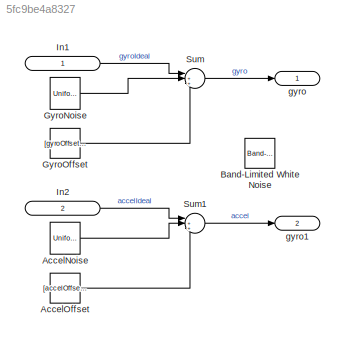
MODEL slx_5fc9be4a8327
KIND model
CONFIG AbsTol = auto
CONFIG FixedStep = auto
CONFIG MaxStep = auto
CONFIG MinStep = auto
CONFIG RelTol = 1e-3
CONFIG SampleTimeConstraint = Unconstrained
CONFIG Solver = ode45
CONFIG SolverMode = Auto
CONFIG SolverName = ode45
CONFIG StartTime = 0.0
CONFIG StopTime = 10.0
BLOCK [UniformRandomNumber] AccelNoise
  Maximum = [accelNoise accelNoise accelNoise]
  Minimum = [-accelNoise -accelNoise -accelNoise]
  SampleTime = dt
  Seed = [4 5 6]
BLOCK [Constant] AccelOffset
  Value = [accelOffset accelOffset accelOffset]
BLOCK [Reference] Band-Limited White Noise  REF=simulink/Sources/Band-Limited
White Noise
  Cov = [0.1]
  Ports = [0, 1]
  SourceBlock = simulink/Sources/Band-Limited\nWhite Noise
  SourceType = Band-Limited White Noise.
  Ts = 0.1
  VectorParams1D = on
  seed = [23341]
BLOCK [UniformRandomNumber] GyroNoise
  Maximum = [gyroNoise gyroNoise gyroNoise]
  Minimum = [-gyroNoise -gyroNoise -gyroNoise]
  SampleTime = dt
  Seed = [1 2 3]
BLOCK [Constant] GyroOffset
  Value = [gyroOffset gyroOffset gyroOffset]
BLOCK [Inport] In1
  IconDisplay = Signal name
  OutDataTypeStr = double
  OutMax = [gyroMax]
  OutMin = [-gyroMax]
  PortDimensions = 3
  SignalType = real
  VarSizeSig = No
BLOCK [Inport] In2
  IconDisplay = Signal name
  OutDataTypeStr = double
  Port = 2
  PortDimensions = 3
  SignalType = real
  VarSizeSig = No
BLOCK [Sum] Sum
  IconShape = round
  InputSameDT = off
  Inputs = |+++
  OutDataTypeStr = Inherit: Inherit via internal rule
  Ports = [3, 1]
  SaturateOnIntegerOverflow = off
BLOCK [Sum] Sum1
  IconShape = round
  InputSameDT = off
  Inputs = |+++
  OutDataTypeStr = Inherit: Inherit via internal rule
  Ports = [3, 1]
  SaturateOnIntegerOverflow = off
BLOCK [Outport] gyro
  IconDisplay = Signal name
  OutDataTypeStr = double
  PortDimensions = 3
  SignalType = real
  VarSizeSig = No
BLOCK [Outport] gyro1
  IconDisplay = Signal name
  OutDataTypeStr = double
  Port = 2
  PortDimensions = 3
  SignalType = real
  VarSizeSig = No
LINE AccelNoise:1 -> Sum1:2
LINE AccelOffset:1 -> Sum1:3
LINE GyroNoise:1 -> Sum:2
LINE GyroOffset:1 -> Sum:3
LINE In1:1 -> Sum:1
LINE In2:1 -> Sum1:1
LINE Sum1:1 -> gyro1:1
LINE Sum:1 -> gyro:1
